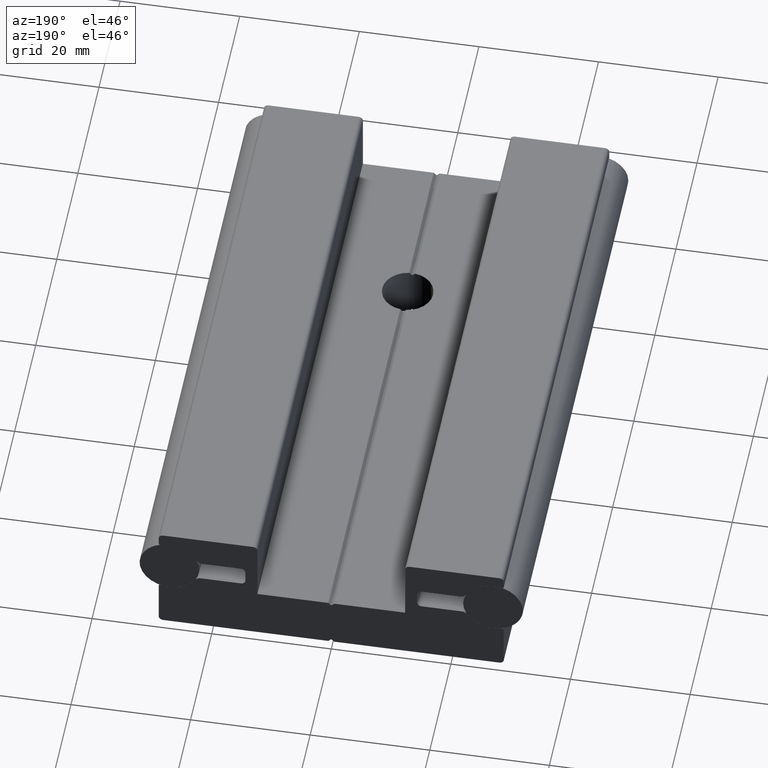
[diagram: clean part render]
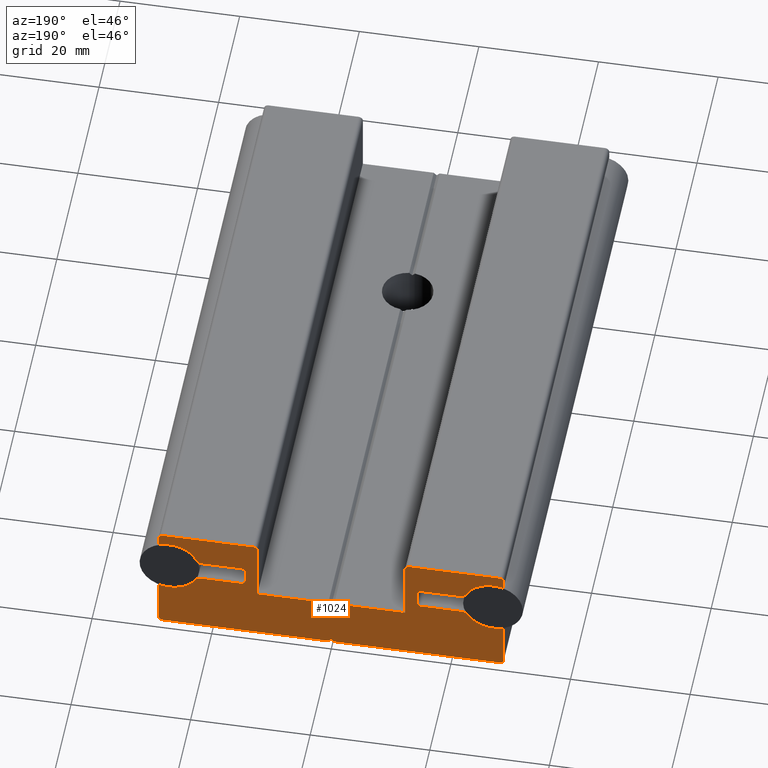
[diagram: same view with one face highlighted and labeled with its STEP entity id]
A machine part, auxiliary view. The second image highlights one B-rep face of the part: STEP entity #1024.
In plain terms, the highlighted planar face has unit normal (0, -1, 0).
Its self-contained STEP definition (entity closure, byte-faithful):
#37=PLANE('',#1167);
#68=FACE_OUTER_BOUND('',#122,.T.);
#122=EDGE_LOOP('',(#726,#727,#728,#729,#730,#731,#732,#733,#734,#735,#736,
#737,#738,#739,#740,#741,#742,#743,#744,#745,#746,#747,#748,#749,#750,#751,
#752,#753,#754,#755,#756,#757,#758,#759,#760,#761,#762,#763,#764,#765,#766,
#767,#768,#769));
#173=LINE('',#1640,#269);
#182=LINE('',#1658,#278);
#188=LINE('',#1675,#284);
#189=LINE('',#1679,#285);
#190=LINE('',#1683,#286);
#191=LINE('',#1691,#287);
#192=LINE('',#1695,#288);
#193=LINE('',#1699,#289);
#194=LINE('',#1701,#290);
#195=LINE('',#1703,#291);
#196=LINE('',#1704,#292);
#197=LINE('',#1706,#293);
#198=LINE('',#1710,#294);
#199=LINE('',#1714,#295);
#200=LINE('',#1722,#296);
#201=LINE('',#1726,#297);
#202=LINE('',#1730,#298);
#203=LINE('',#1738,#299);
#204=LINE('',#1742,#300);
#205=LINE('',#1744,#301);
#206=LINE('',#1745,#302);
#207=LINE('',#1749,#303);
#269=VECTOR('',#1304,10.);
#278=VECTOR('',#1319,10.);
#284=VECTOR('',#1335,10.);
#285=VECTOR('',#1338,10.);
#286=VECTOR('',#1341,10.);
#287=VECTOR('',#1348,10.);
#288=VECTOR('',#1351,10.);
#289=VECTOR('',#1354,10.);
#290=VECTOR('',#1355,10.);
#291=VECTOR('',#1356,10.);
#292=VECTOR('',#1357,10.);
#293=VECTOR('',#1358,10.);
#294=VECTOR('',#1361,10.);
#295=VECTOR('',#1364,10.);
#296=VECTOR('',#1371,10.);
#297=VECTOR('',#1374,10.);
#298=VECTOR('',#1377,10.);
#299=VECTOR('',#1384,10.);
#300=VECTOR('',#1387,10.);
#301=VECTOR('',#1388,10.);
#302=VECTOR('',#1389,10.);
#303=VECTOR('',#1392,10.);
#367=CIRCLE('',#1168,5.);
#368=CIRCLE('',#1169,1.);
#369=CIRCLE('',#1170,0.75);
#370=CIRCLE('',#1171,0.75);
#371=CIRCLE('',#1172,1.);
#372=CIRCLE('',#1173,5.);
#373=CIRCLE('',#1174,0.2);
#374=CIRCLE('',#1175,0.75);
#375=CIRCLE('',#1176,0.75);
#376=CIRCLE('',#1177,0.75);
#377=CIRCLE('',#1178,0.75);
#378=CIRCLE('',#1179,0.2);
#379=CIRCLE('',#1180,5.);
#380=CIRCLE('',#1181,1.);
#381=CIRCLE('',#1182,0.75);
#382=CIRCLE('',#1183,0.75);
#383=CIRCLE('',#1184,1.);
#384=CIRCLE('',#1185,5.);
#385=CIRCLE('',#1186,0.2);
#386=CIRCLE('',#1187,0.75);
#387=CIRCLE('',#1188,0.75);
#388=CIRCLE('',#1189,0.2);
#437=VERTEX_POINT('',#1637);
#438=VERTEX_POINT('',#1639);
#443=VERTEX_POINT('',#1655);
#444=VERTEX_POINT('',#1657);
#447=VERTEX_POINT('',#1669);
#448=VERTEX_POINT('',#1670);
#449=VERTEX_POINT('',#1672);
#450=VERTEX_POINT('',#1674);
#451=VERTEX_POINT('',#1676);
#452=VERTEX_POINT('',#1678);
#453=VERTEX_POINT('',#1680);
#454=VERTEX_POINT('',#1682);
#455=VERTEX_POINT('',#1684);
#456=VERTEX_POINT('',#1686);
#457=VERTEX_POINT('',#1688);
#458=VERTEX_POINT('',#1690);
#459=VERTEX_POINT('',#1692);
#460=VERTEX_POINT('',#1694);
#461=VERTEX_POINT('',#1696);
#462=VERTEX_POINT('',#1698);
#463=VERTEX_POINT('',#1700);
#464=VERTEX_POINT('',#1702);
#465=VERTEX_POINT('',#1705);
#466=VERTEX_POINT('',#1707);
#467=VERTEX_POINT('',#1709);
#468=VERTEX_POINT('',#1711);
#469=VERTEX_POINT('',#1713);
#470=VERTEX_POINT('',#1715);
#471=VERTEX_POINT('',#1717);
#472=VERTEX_POINT('',#1719);
#473=VERTEX_POINT('',#1721);
#474=VERTEX_POINT('',#1723);
#475=VERTEX_POINT('',#1725);
#476=VERTEX_POINT('',#1727);
#477=VERTEX_POINT('',#1729);
#478=VERTEX_POINT('',#1731);
#479=VERTEX_POINT('',#1733);
#480=VERTEX_POINT('',#1735);
#481=VERTEX_POINT('',#1737);
#482=VERTEX_POINT('',#1739);
#483=VERTEX_POINT('',#1741);
#484=VERTEX_POINT('',#1743);
#485=VERTEX_POINT('',#1746);
#486=VERTEX_POINT('',#1748);
#543=EDGE_CURVE('',#438,#437,#173,.T.);
#552=EDGE_CURVE('',#444,#443,#182,.T.);
#558=EDGE_CURVE('',#447,#448,#367,.T.);
#559=EDGE_CURVE('',#448,#449,#368,.T.);
#560=EDGE_CURVE('',#449,#450,#188,.T.);
#561=EDGE_CURVE('',#450,#451,#369,.T.);
#562=EDGE_CURVE('',#451,#452,#189,.T.);
#563=EDGE_CURVE('',#452,#453,#370,.T.);
#564=EDGE_CURVE('',#453,#454,#190,.T.);
#565=EDGE_CURVE('',#454,#455,#371,.T.);
#566=EDGE_CURVE('',#455,#456,#372,.T.);
#567=EDGE_CURVE('',#456,#457,#373,.T.);
#568=EDGE_CURVE('',#457,#458,#191,.T.);
#569=EDGE_CURVE('',#458,#459,#374,.T.);
#570=EDGE_CURVE('',#459,#460,#192,.T.);
#571=EDGE_CURVE('',#460,#461,#375,.T.);
#572=EDGE_CURVE('',#461,#462,#193,.T.);
#573=EDGE_CURVE('',#462,#463,#194,.T.);
#574=EDGE_CURVE('',#463,#464,#195,.T.);
#575=EDGE_CURVE('',#464,#438,#196,.T.);
#576=EDGE_CURVE('',#437,#465,#197,.T.);
#577=EDGE_CURVE('',#465,#466,#376,.T.);
#578=EDGE_CURVE('',#466,#467,#198,.T.);
#579=EDGE_CURVE('',#467,#468,#377,.T.);
#580=EDGE_CURVE('',#468,#469,#199,.T.);
#581=EDGE_CURVE('',#469,#470,#378,.T.);
#582=EDGE_CURVE('',#470,#471,#379,.T.);
#583=EDGE_CURVE('',#471,#472,#380,.T.);
#584=EDGE_CURVE('',#472,#473,#200,.T.);
#585=EDGE_CURVE('',#473,#474,#381,.T.);
#586=EDGE_CURVE('',#474,#475,#201,.T.);
#587=EDGE_CURVE('',#475,#476,#382,.T.);
#588=EDGE_CURVE('',#476,#477,#202,.T.);
#589=EDGE_CURVE('',#477,#478,#383,.T.);
#590=EDGE_CURVE('',#478,#479,#384,.T.);
#591=EDGE_CURVE('',#479,#480,#385,.T.);
#592=EDGE_CURVE('',#480,#481,#203,.T.);
#593=EDGE_CURVE('',#481,#482,#386,.T.);
#594=EDGE_CURVE('',#482,#483,#204,.T.);
#595=EDGE_CURVE('',#483,#484,#205,.T.);
#596=EDGE_CURVE('',#484,#444,#206,.T.);
#597=EDGE_CURVE('',#443,#485,#387,.T.);
#598=EDGE_CURVE('',#485,#486,#207,.T.);
#599=EDGE_CURVE('',#486,#447,#388,.T.);
#726=ORIENTED_EDGE('',*,*,#558,.T.);
#727=ORIENTED_EDGE('',*,*,#559,.T.);
#728=ORIENTED_EDGE('',*,*,#560,.T.);
#729=ORIENTED_EDGE('',*,*,#561,.T.);
#730=ORIENTED_EDGE('',*,*,#562,.T.);
#731=ORIENTED_EDGE('',*,*,#563,.T.);
#732=ORIENTED_EDGE('',*,*,#564,.T.);
#733=ORIENTED_EDGE('',*,*,#565,.T.);
#734=ORIENTED_EDGE('',*,*,#566,.T.);
#735=ORIENTED_EDGE('',*,*,#567,.T.);
#736=ORIENTED_EDGE('',*,*,#568,.T.);
#737=ORIENTED_EDGE('',*,*,#569,.T.);
#738=ORIENTED_EDGE('',*,*,#570,.T.);
#739=ORIENTED_EDGE('',*,*,#571,.T.);
#740=ORIENTED_EDGE('',*,*,#572,.T.);
#741=ORIENTED_EDGE('',*,*,#573,.T.);
#742=ORIENTED_EDGE('',*,*,#574,.T.);
#743=ORIENTED_EDGE('',*,*,#575,.T.);
#744=ORIENTED_EDGE('',*,*,#543,.T.);
#745=ORIENTED_EDGE('',*,*,#576,.T.);
#746=ORIENTED_EDGE('',*,*,#577,.T.);
#747=ORIENTED_EDGE('',*,*,#578,.T.);
#748=ORIENTED_EDGE('',*,*,#579,.T.);
#749=ORIENTED_EDGE('',*,*,#580,.T.);
#750=ORIENTED_EDGE('',*,*,#581,.T.);
#751=ORIENTED_EDGE('',*,*,#582,.T.);
#752=ORIENTED_EDGE('',*,*,#583,.T.);
#753=ORIENTED_EDGE('',*,*,#584,.T.);
#754=ORIENTED_EDGE('',*,*,#585,.T.);
#755=ORIENTED_EDGE('',*,*,#586,.T.);
#756=ORIENTED_EDGE('',*,*,#587,.T.);
#757=ORIENTED_EDGE('',*,*,#588,.T.);
#758=ORIENTED_EDGE('',*,*,#589,.T.);
#759=ORIENTED_EDGE('',*,*,#590,.T.);
#760=ORIENTED_EDGE('',*,*,#591,.T.);
#761=ORIENTED_EDGE('',*,*,#592,.T.);
#762=ORIENTED_EDGE('',*,*,#593,.T.);
#763=ORIENTED_EDGE('',*,*,#594,.T.);
#764=ORIENTED_EDGE('',*,*,#595,.T.);
#765=ORIENTED_EDGE('',*,*,#596,.T.);
#766=ORIENTED_EDGE('',*,*,#552,.T.);
#767=ORIENTED_EDGE('',*,*,#597,.T.);
#768=ORIENTED_EDGE('',*,*,#598,.T.);
#769=ORIENTED_EDGE('',*,*,#599,.T.);
#1024=ADVANCED_FACE('',(#68),#37,.F.);
#1167=AXIS2_PLACEMENT_3D('',#1668,#1329,#1330);
#1168=AXIS2_PLACEMENT_3D('',#1671,#1331,#1332);
#1169=AXIS2_PLACEMENT_3D('',#1673,#1333,#1334);
#1170=AXIS2_PLACEMENT_3D('',#1677,#1336,#1337);
#1171=AXIS2_PLACEMENT_3D('',#1681,#1339,#1340);
#1172=AXIS2_PLACEMENT_3D('',#1685,#1342,#1343);
#1173=AXIS2_PLACEMENT_3D('',#1687,#1344,#1345);
#1174=AXIS2_PLACEMENT_3D('',#1689,#1346,#1347);
#1175=AXIS2_PLACEMENT_3D('',#1693,#1349,#1350);
#1176=AXIS2_PLACEMENT_3D('',#1697,#1352,#1353);
#1177=AXIS2_PLACEMENT_3D('',#1708,#1359,#1360);
#1178=AXIS2_PLACEMENT_3D('',#1712,#1362,#1363);
#1179=AXIS2_PLACEMENT_3D('',#1716,#1365,#1366);
#1180=AXIS2_PLACEMENT_3D('',#1718,#1367,#1368);
#1181=AXIS2_PLACEMENT_3D('',#1720,#1369,#1370);
#1182=AXIS2_PLACEMENT_3D('',#1724,#1372,#1373);
#1183=AXIS2_PLACEMENT_3D('',#1728,#1375,#1376);
#1184=AXIS2_PLACEMENT_3D('',#1732,#1378,#1379);
#1185=AXIS2_PLACEMENT_3D('',#1734,#1380,#1381);
#1186=AXIS2_PLACEMENT_3D('',#1736,#1382,#1383);
#1187=AXIS2_PLACEMENT_3D('',#1740,#1385,#1386);
#1188=AXIS2_PLACEMENT_3D('',#1747,#1390,#1391);
#1189=AXIS2_PLACEMENT_3D('',#1750,#1393,#1394);
#1304=DIRECTION('',(1.,0.,0.));
#1319=DIRECTION('',(-1.,0.,0.));
#1329=DIRECTION('center_axis',(0.,-1.,0.));
#1330=DIRECTION('ref_axis',(0.,0.,-1.));
#1331=DIRECTION('center_axis',(0.,-1.,0.));
#1332=DIRECTION('ref_axis',(0.307692307692301,0.,0.951485913604077));
#1333=DIRECTION('center_axis',(0.,1.,0.));
#1334=DIRECTION('ref_axis',(0.,0.,1.));
#1335=DIRECTION('',(1.,0.,0.));
#1336=DIRECTION('center_axis',(0.,-1.,0.));
#1337=DIRECTION('ref_axis',(0.,0.,1.));
#1338=DIRECTION('',(0.,0.,1.));
#1339=DIRECTION('center_axis',(0.,-1.,0.));
#1340=DIRECTION('ref_axis',(-1.,0.,0.));
#1341=DIRECTION('',(-1.,0.,0.));
#1342=DIRECTION('center_axis',(0.,1.,0.));
#1343=DIRECTION('ref_axis',(-0.909059342886313,0.,-0.416666666666659));
#1344=DIRECTION('center_axis',(0.,-1.,0.));
#1345=DIRECTION('ref_axis',(-0.90905934288631,0.,-0.416666666666665));
#1346=DIRECTION('center_axis',(0.,1.,0.));
#1347=DIRECTION('ref_axis',(-1.,0.,0.));
#1348=DIRECTION('',(0.,0.,1.));
#1349=DIRECTION('center_axis',(0.,1.,0.));
#1350=DIRECTION('ref_axis',(0.,0.,1.));
#1351=DIRECTION('',(1.,0.,0.));
#1352=DIRECTION('center_axis',(0.,1.,0.));
#1353=DIRECTION('ref_axis',(1.,0.,0.));
#1354=DIRECTION('',(0.,0.,-1.));
#1355=DIRECTION('',(1.,0.,0.));
#1356=DIRECTION('',(0.707106781186546,0.,-0.707106781186549));
#1357=DIRECTION('',(0.707106781186546,0.,0.707106781186549));
#1358=DIRECTION('',(0.,0.,1.));
#1359=DIRECTION('center_axis',(0.,1.,0.));
#1360=DIRECTION('ref_axis',(0.,0.,1.));
#1361=DIRECTION('',(1.,0.,0.));
#1362=DIRECTION('center_axis',(0.,1.,0.));
#1363=DIRECTION('ref_axis',(1.,0.,0.));
#1364=DIRECTION('',(0.,0.,-1.));
#1365=DIRECTION('center_axis',(0.,1.,0.));
#1366=DIRECTION('ref_axis',(-0.307692307692519,0.,-0.951485913604007));
#1367=DIRECTION('center_axis',(0.,-1.,0.));
#1368=DIRECTION('ref_axis',(-0.307692307692299,0.,-0.951485913604078));
#1369=DIRECTION('center_axis',(0.,1.,0.));
#1370=DIRECTION('ref_axis',(0.,0.,-1.));
#1371=DIRECTION('',(-1.,0.,0.));
#1372=DIRECTION('center_axis',(0.,-1.,0.));
#1373=DIRECTION('ref_axis',(0.,0.,-1.));
#1374=DIRECTION('',(0.,0.,-1.));
#1375=DIRECTION('center_axis',(0.,-1.,0.));
#1376=DIRECTION('ref_axis',(1.,0.,0.));
#1377=DIRECTION('',(1.,0.,0.));
#1378=DIRECTION('center_axis',(0.,1.,0.));
#1379=DIRECTION('ref_axis',(0.866025403784451,0.,0.499999999999979));
#1380=DIRECTION('center_axis',(0.,-1.,0.));
#1381=DIRECTION('ref_axis',(0.866025403784439,0.,0.499999999999999));
#1382=DIRECTION('center_axis',(0.,1.,0.));
#1383=DIRECTION('ref_axis',(1.,0.,0.));
#1384=DIRECTION('',(0.,0.,-1.));
#1385=DIRECTION('center_axis',(0.,1.,0.));
#1386=DIRECTION('ref_axis',(0.,0.,-1.));
#1387=DIRECTION('',(-1.,0.,0.));
#1388=DIRECTION('',(-0.707106781186546,0.,0.707106781186549));
#1389=DIRECTION('',(-0.707106781186546,0.,-0.707106781186549));
#1390=DIRECTION('center_axis',(0.,1.,0.));
#1391=DIRECTION('ref_axis',(-1.,0.,0.));
#1392=DIRECTION('',(0.,0.,1.));
#1393=DIRECTION('center_axis',(0.,1.,0.));
#1394=DIRECTION('ref_axis',(0.307692307692472,0.,0.951485913604022));
#1637=CARTESIAN_POINT('',(12.35,100.,8.5));
#1639=CARTESIAN_POINT('',(0.499999999999998,100.,8.5));
#1640=CARTESIAN_POINT('',(12.35,100.,8.5));
#1655=CARTESIAN_POINT('',(-28.1,100.,-0.5));
#1657=CARTESIAN_POINT('',(-0.499999999999998,100.,-0.5));
#1658=CARTESIAN_POINT('',(-28.1,100.,-0.5));
#1668=CARTESIAN_POINT('Origin',(-1.16572262723701E-16,100.,9.13354687354921));
#1669=CARTESIAN_POINT('',(-28.5884615384615,100.,7.74257043197963));
#1670=CARTESIAN_POINT('',(-22.7198729810778,100.,10.));
#1671=CARTESIAN_POINT('Origin',(-27.05,100.,12.5));
#1672=CARTESIAN_POINT('',(-21.8538475772933,100.,10.5));
#1673=CARTESIAN_POINT('Origin',(-21.8538475772933,100.,9.5));
#1674=CARTESIAN_POINT('',(-15.1,100.,10.5));
#1675=CARTESIAN_POINT('',(-15.1,100.,10.5));
#1676=CARTESIAN_POINT('',(-14.35,100.,11.25));
#1677=CARTESIAN_POINT('Origin',(-15.1,100.,11.25));
#1678=CARTESIAN_POINT('',(-14.35,100.,13.25));
#1679=CARTESIAN_POINT('',(-14.35,100.,13.25));
#1680=CARTESIAN_POINT('',(-15.1,100.,14.));
#1681=CARTESIAN_POINT('Origin',(-15.1,100.,13.25));
#1682=CARTESIAN_POINT('',(-21.5956439426821,100.,14.));
#1683=CARTESIAN_POINT('',(-21.5956439426821,100.,14.));
#1684=CARTESIAN_POINT('',(-22.5047032855685,100.,14.5833333333333));
#1685=CARTESIAN_POINT('Origin',(-21.5956439426821,100.,15.));
#1686=CARTESIAN_POINT('',(-28.5884615384615,100.,17.2574295680204));
#1687=CARTESIAN_POINT('Origin',(-27.05,100.,12.5));
#1688=CARTESIAN_POINT('',(-28.85,100.,17.4477267507412));
#1689=CARTESIAN_POINT('Origin',(-28.65,100.,17.4477267507412));
#1690=CARTESIAN_POINT('',(-28.85,100.,18.75));
#1691=CARTESIAN_POINT('',(-28.85,100.,18.75));
#1692=CARTESIAN_POINT('',(-28.1,100.,19.5));
#1693=CARTESIAN_POINT('Origin',(-28.1,100.,18.75));
#1694=CARTESIAN_POINT('',(-13.1,100.,19.5));
#1695=CARTESIAN_POINT('',(-13.1,100.,19.5));
#1696=CARTESIAN_POINT('',(-12.35,100.,18.75));
#1697=CARTESIAN_POINT('Origin',(-13.1,100.,18.75));
#1698=CARTESIAN_POINT('',(-12.35,100.,8.5));
#1699=CARTESIAN_POINT('',(-12.35,100.,8.5));
#1700=CARTESIAN_POINT('',(-0.499999999999998,100.,8.5));
#1701=CARTESIAN_POINT('',(-0.499999999999998,100.,8.5));
#1702=CARTESIAN_POINT('',(0.,100.,8.));
#1703=CARTESIAN_POINT('',(0.,100.,8.));
#1704=CARTESIAN_POINT('',(0.499999999999998,100.,8.5));
#1705=CARTESIAN_POINT('',(12.35,100.,18.75));
#1706=CARTESIAN_POINT('',(12.35,100.,18.75));
#1707=CARTESIAN_POINT('',(13.1,100.,19.5));
#1708=CARTESIAN_POINT('Origin',(13.1,100.,18.75));
#1709=CARTESIAN_POINT('',(28.1,100.,19.5));
#1710=CARTESIAN_POINT('',(28.1,100.,19.5));
#1711=CARTESIAN_POINT('',(28.85,100.,18.75));
#1712=CARTESIAN_POINT('Origin',(28.1,100.,18.75));
#1713=CARTESIAN_POINT('',(28.85,100.,17.4477267507412));
#1714=CARTESIAN_POINT('',(28.85,100.,17.4477267507412));
#1715=CARTESIAN_POINT('',(28.5884615384615,100.,17.2574295680204));
#1716=CARTESIAN_POINT('Origin',(28.65,100.,17.4477267507412));
#1717=CARTESIAN_POINT('',(22.5047032855685,100.,14.5833333333333));
#1718=CARTESIAN_POINT('Origin',(27.05,100.,12.5));
#1719=CARTESIAN_POINT('',(21.5956439426821,100.,14.));
#1720=CARTESIAN_POINT('Origin',(21.5956439426821,100.,15.));
#1721=CARTESIAN_POINT('',(15.1,100.,14.));
#1722=CARTESIAN_POINT('',(15.1,100.,14.));
#1723=CARTESIAN_POINT('',(14.35,100.,13.25));
#1724=CARTESIAN_POINT('Origin',(15.1,100.,13.25));
#1725=CARTESIAN_POINT('',(14.35,100.,11.25));
#1726=CARTESIAN_POINT('',(14.35,100.,11.25));
#1727=CARTESIAN_POINT('',(15.1,100.,10.5));
#1728=CARTESIAN_POINT('Origin',(15.1,100.,11.25));
#1729=CARTESIAN_POINT('',(21.8538475772933,100.,10.5));
#1730=CARTESIAN_POINT('',(21.8538475772933,100.,10.5));
#1731=CARTESIAN_POINT('',(22.7198729810778,100.,10.));
#1732=CARTESIAN_POINT('Origin',(21.8538475772933,100.,9.5));
#1733=CARTESIAN_POINT('',(28.5884615384615,100.,7.74257043197962));
#1734=CARTESIAN_POINT('Origin',(27.05,100.,12.5));
#1735=CARTESIAN_POINT('',(28.85,100.,7.55227324925881));
#1736=CARTESIAN_POINT('Origin',(28.65,100.,7.55227324925881));
#1737=CARTESIAN_POINT('',(28.85,100.,0.25));
#1738=CARTESIAN_POINT('',(28.85,100.,0.25));
#1739=CARTESIAN_POINT('',(28.1,100.,-0.5));
#1740=CARTESIAN_POINT('Origin',(28.1,100.,0.25));
#1741=CARTESIAN_POINT('',(0.499999999999998,100.,-0.5));
#1742=CARTESIAN_POINT('',(0.499999999999998,100.,-0.5));
#1743=CARTESIAN_POINT('',(0.,100.,0.));
#1744=CARTESIAN_POINT('',(0.,100.,0.));
#1745=CARTESIAN_POINT('',(-0.499999999999998,100.,-0.5));
#1746=CARTESIAN_POINT('',(-28.85,100.,0.25));
#1747=CARTESIAN_POINT('Origin',(-28.1,100.,0.25));
#1748=CARTESIAN_POINT('',(-28.85,100.,7.55227324925881));
#1749=CARTESIAN_POINT('',(-28.85,100.,7.55227324925881));
#1750=CARTESIAN_POINT('Origin',(-28.65,100.,7.55227324925881));